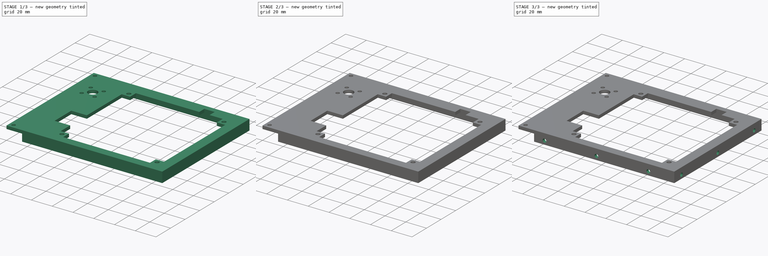
[diagram: build sequence overview — one tinted view per stage of 3, left to right]
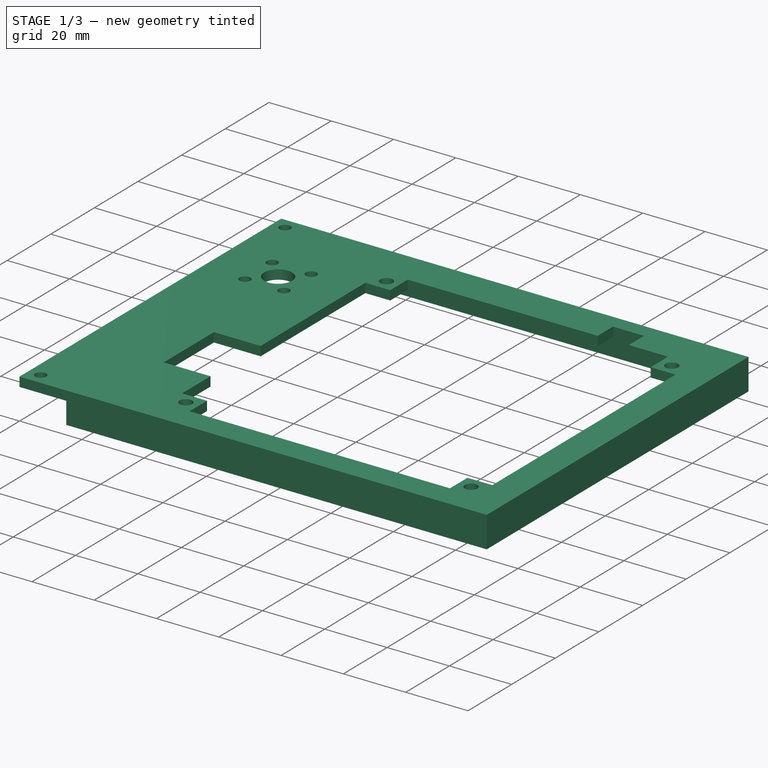
[diagram: stage 1 of 3 — iso view after this stage's code; geometry added in this stage tinted green]
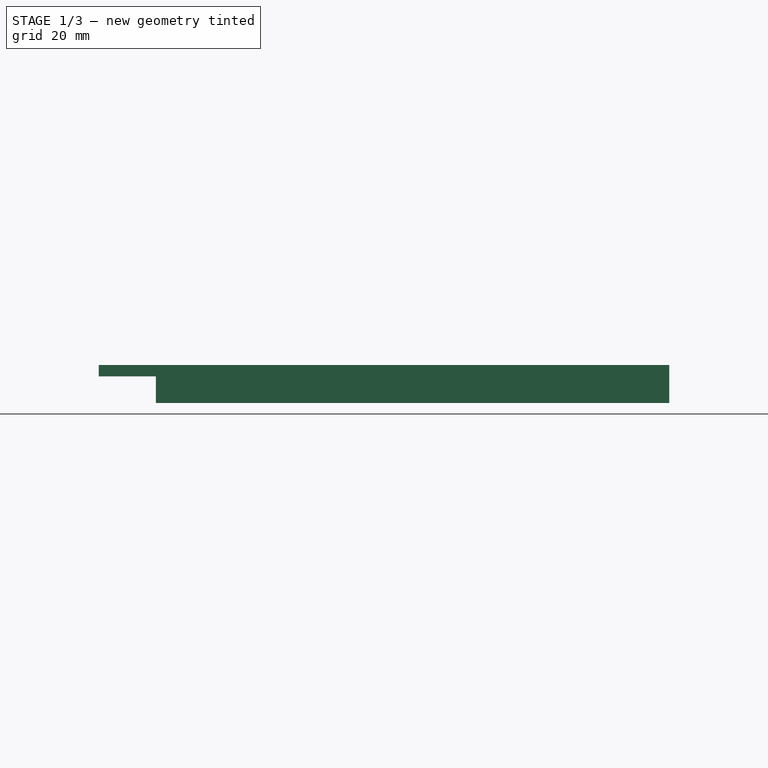
[diagram: stage 1 of 3 — front view after this stage's code; geometry added in this stage tinted green]
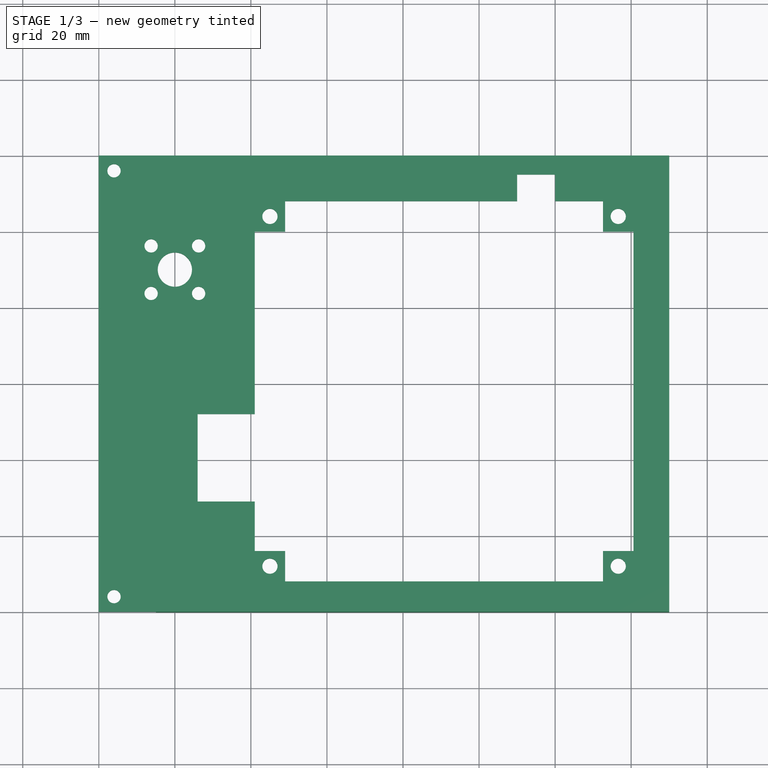
[diagram: stage 1 of 3 — top view after this stage's code; geometry added in this stage tinted green]
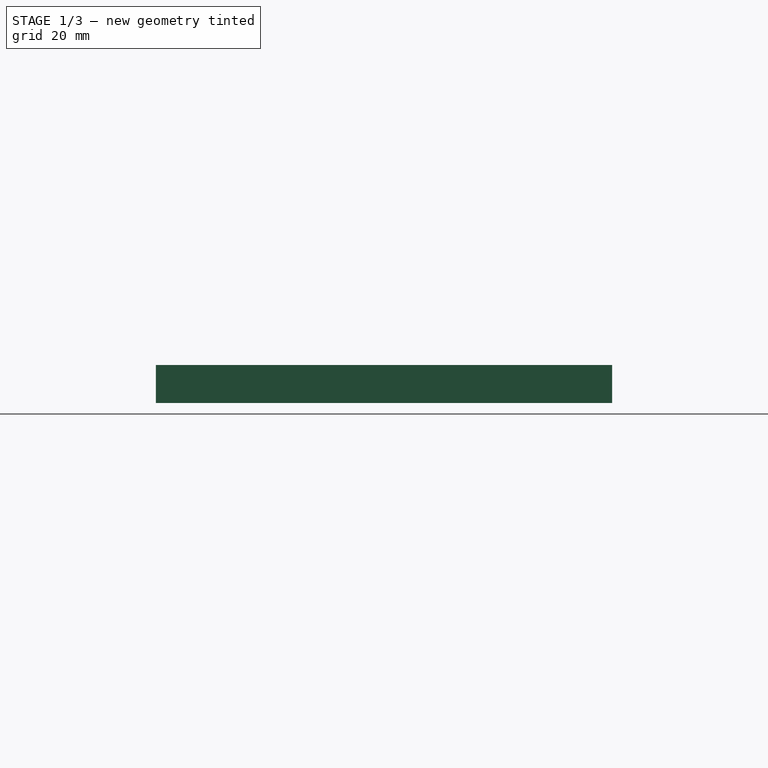
[diagram: stage 1 of 3 — right view after this stage's code; geometry added in this stage tinted green]
FCSTD DOCUMENT  (FreeCAD 0.21R29393 (Git))
Label: BackRightPanel2
License: All rights reserved
LicenseURL: http://en.wikipedia.org/wiki/All_rights_reserved
objects: Sketcher::SketchObject×5, PartDesign::Plane×3, PartDesign::Pocket×3, PartDesign::Pad×2, PartDesign::Body×1
note: 19 computed .brp shape members not serialized (recipe doc carries the construction recipe); baked Part::Feature solids carry a one-line shape summary decoded from their .brp

FEATURE [Sketcher::SketchObject] Sketch  label="SketchBase"
  FullyConstrained = false
  MapMode = 5
  Support = -> [XY_Plane]
  sketch-geometry (35):
    g0: LineSegment StartX=0 StartY=0 StartZ=0 EndX=150 EndY=0 EndZ=0
    g1: LineSegment StartX=150 StartY=0 StartZ=0 EndX=150 EndY=120 EndZ=0
    g2: LineSegment StartX=150 StartY=120 StartZ=0 EndX=0 EndY=120 EndZ=0
    g3: LineSegment StartX=0 StartY=120 StartZ=0 EndX=0 EndY=0 EndZ=0
    g4: Circle CenterX=20 CenterY=90 CenterZ=0 NormalX=0 NormalY=0 NormalZ=1 AngleXU=0 Radius=4.5
    g5: Circle CenterX=13.75 CenterY=96.25 CenterZ=0 NormalX=0 NormalY=0 NormalZ=1 AngleXU=0 Radius=1.75
    g6: Circle CenterX=26.25 CenterY=96.25 CenterZ=0 NormalX=0 NormalY=0 NormalZ=1 AngleXU=0 Radius=1.75
    g7: Circle CenterX=13.75 CenterY=83.75 CenterZ=0 NormalX=0 NormalY=0 NormalZ=1 AngleXU=0 Radius=1.75
    g8: Circle CenterX=26.25 CenterY=83.75 CenterZ=0 NormalX=0 NormalY=0 NormalZ=1 AngleXU=0 Radius=1.75
    g9: Circle CenterX=4 CenterY=116 CenterZ=0 NormalX=0 NormalY=0 NormalZ=1 AngleXU=0 Radius=1.75
    g10: Circle CenterX=4 CenterY=4 CenterZ=0 NormalX=0 NormalY=0 NormalZ=1 AngleXU=0 Radius=1.75
    g11: LineSegment StartX=49 StartY=108 StartZ=0 EndX=110 EndY=108 EndZ=0
    g12: LineSegment StartX=41 StartY=16 StartZ=0 EndX=41 EndY=29 EndZ=0
    g13: Circle CenterX=45 CenterY=104 CenterZ=0 NormalX=0 NormalY=0 NormalZ=1 AngleXU=0 Radius=2
    g14: Circle CenterX=136.6 CenterY=104 CenterZ=0 NormalX=0 NormalY=0 NormalZ=1 AngleXU=0 Radius=2
    g15: Circle CenterX=45 CenterY=12 CenterZ=0 NormalX=0 NormalY=0 NormalZ=1 AngleXU=0 Radius=2
    g16: Circle CenterX=136.6 CenterY=12 CenterZ=0 NormalX=0 NormalY=0 NormalZ=1 AngleXU=0 Radius=2
    g17: LineSegment StartX=41 StartY=16 StartZ=0 EndX=49 EndY=16 EndZ=0
    g18: LineSegment StartX=49 StartY=16 StartZ=0 EndX=49 EndY=8 EndZ=0
    g19: LineSegment StartX=140.6 StartY=100 StartZ=0 EndX=140.6 EndY=16 EndZ=0
    g20: LineSegment StartX=49 StartY=8 StartZ=0 EndX=132.6 EndY=8 EndZ=0
    g21: LineSegment StartX=110 StartY=115 StartZ=0 EndX=120 EndY=115 EndZ=0
    g22: LineSegment StartX=120 StartY=115 StartZ=0 EndX=120 EndY=108 EndZ=0
    g23: LineSegment StartX=110 StartY=108 StartZ=0 EndX=110 EndY=115 EndZ=0
    g24: LineSegment StartX=26 StartY=29 StartZ=0 EndX=26 EndY=52 EndZ=0
    g25: LineSegment StartX=132.6 StartY=8 StartZ=0 EndX=132.6 EndY=16 EndZ=0
    g26: LineSegment StartX=132.6 StartY=16 StartZ=0 EndX=140.6 EndY=16 EndZ=0
    g27: LineSegment StartX=41 StartY=100 StartZ=0 EndX=49 EndY=100 EndZ=0
    g28: LineSegment StartX=132.6 StartY=108 StartZ=0 EndX=132.6 EndY=100 EndZ=0
    g29: LineSegment StartX=132.6 StartY=100 StartZ=0 EndX=140.6 EndY=100 EndZ=0
    g30: LineSegment StartX=49 StartY=108 StartZ=0 EndX=49 EndY=100 EndZ=0
    g31: LineSegment StartX=120 StartY=108 StartZ=0 EndX=132.6 EndY=108 EndZ=0
    g32: LineSegment StartX=26 StartY=29 StartZ=0 EndX=41 EndY=29 EndZ=0
    g33: LineSegment StartX=26 StartY=52 StartZ=0 EndX=41 EndY=52 EndZ=0
    g34: LineSegment StartX=41 StartY=52 StartZ=0 EndX=41 EndY=100 EndZ=0
  constraints (100):
    c: Coincident(g0,g1)
    c: Coincident(g1,g2)
    c: Coincident(g2,g3)
    c: Coincident(g3,g0)
    c: Horizontal(g0)
    c: Horizontal(g2)
    c: Vertical(g1)
    c: Vertical(g3)
    c: Coincident(g0,g-1)
    c: DistanceY(g0,g2) = 120
    c: DistanceX(g2,g1) = 150
    c: DistanceX(g2,g4) = 20
    c: DistanceY(g4,g2) = 30
    c: Diameter(g4) = 9
    c: Horizontal(g5,g6)
    c: Vertical(g6,g8)
    c: Horizontal(g7,g8)
    c: DistanceX(g5,g6) = 12.5
    c: DistanceY(g8,g6) = 12.5
    c: Vertical(g5,g7)
    c: Equal(g5,g6)
    c: Equal(g5,g8)
    c: Equal(g5,g7)
    c: Diameter(g5) = 3.5
    c: Symmetric(g5,g8,g4)
    c: Equal(g9,g10)
    c: Diameter(g9) = 3.5
    c: Vertical(g10,g9)
    c: DistanceX(g0,g10) = 4
    c: DistanceY(g0,g10) = 4
    c: DistanceY(g9,g2) = 4
    c: Horizontal(g11)
    c: Vertical(g12)
    c: Diameter(g16) = 4
    c: Equal(g16,g15)
    c: Equal(g15,g13)
    c: Equal(g13,g14)
    c: Horizontal(g15,g16)
    c: Horizontal(g13,g14)
    c: Vertical(g16,g14)
    c: Vertical(g15,g13)
    c: DistanceY(g16,g14) = 92
    c: Horizontal(g17)
    c: Coincident(g18,g17)
    c: Vertical(g18)
    c: Coincident(g12,g17)
    c: DistanceX(g15,g18) = 4
    c: DistanceY(g15,g17) = 4
    c: Vertical(g19)
    c: Coincident(g20,g18)
    c: Horizontal(g20)
    c: DistanceY(g0,g15) = 12
    c: DistanceX(g0,g15) = 45
    c: Coincident(g21,g22)
    c: Coincident(g23,g21)
    c: Horizontal(g21)
    c: Vertical(g22)
    c: Vertical(g23)
    c: DistanceX(g21,g21) = 10
    c: DistanceY(g23,g21) = 7
    c: DistanceX(g21,g1) = 30
    c: DistanceY(g21,g1) = 5
    c: Vertical(g24)
    c: Vertical(g25)
    c: Coincident(g20,g25)
    c: Coincident(g26,g25)
    c: Coincident(g26,g19)
    c: Horizontal(g26)
    c: Horizontal(g27)
    c: Coincident(g34,g27)
    c: Vertical(g28)
    c: Coincident(g29,g28)
    c: Horizontal(g29)
    c: Coincident(g31,g28)
    c: Coincident(g19,g29)
    c: Coincident(g30,g11)
    c: Coincident(g30,g27)
    c: Vertical(g30)
    c: DistanceX(g15,g16) = 91.6
    c: DistanceX(g31,g14) = 4
    c: DistanceY(g19,g14) = 4
    c: DistanceX(g13,g27) = 4
    c: DistanceY(g34,g13) = 4
    c: DistanceX(g20,g16) = 4
    c: DistanceY(g16,g19) = 4
    c: DistanceY(g13,g11) = 4
    c: DistanceX(g34,g13) = 4
    c: DistanceY(g18,g15) = 4
    c: DistanceX(g16,g19) = 4
    c: PointOnObject(g31,g22)
    c: Coincident(g32,g24)
    c: Horizontal(g32)
    c: Coincident(g33,g24)
    c: Horizontal(g33)
    c: Coincident(g12,g32)
    c: Coincident(g34,g33)
    c: DistanceY(g24,g24) = 23
    c: DistanceY(g15,g12) = 17
    c: DistanceX(g24,g33) = 15
    c: Vertical(g34)
FEATURE [PartDesign::Pad] Pad
  Direction = (0,0,1)
  Length = 3
  Length2 = 10
  Profile = -> Sketch
  ReferenceAxis = -> Sketch [N_Axis]
  Reversed = true
  Type = 0
FEATURE [PartDesign::Plane] DatumPlane
  AttachmentOffset = pos=(0,0,-3) rot=(0,0,1;0rad)
  Length = 60
  MapMode = 5
  Placement = pos=(0,0,-3) rot=(0,0,1;0rad)
  ResizeMode = 0
  Support = -> [XY_Plane]
  Width = 60
FEATURE [Sketcher::SketchObject] Sketch001
  FullyConstrained = true
  MapMode = 5
  Placement = pos=(0,0,-3) rot=(0,0,1;0rad)
  Support = -> [DatumPlane]
  sketch-geometry (8):
    g0: LineSegment StartX=15 StartY=117 StartZ=0 EndX=15 EndY=120 EndZ=0
    g1: LineSegment StartX=15 StartY=120 StartZ=0 EndX=150 EndY=120 EndZ=0
    g2: LineSegment StartX=150 StartY=120 StartZ=0 EndX=150 EndY=0 EndZ=0
    g3: LineSegment StartX=150 StartY=0 StartZ=0 EndX=15 EndY=0 EndZ=0
    g4: LineSegment StartX=15 StartY=0 StartZ=0 EndX=15 EndY=3 EndZ=0
    g5: LineSegment StartX=15 StartY=3 StartZ=0 EndX=147 EndY=3 EndZ=0
    g6: LineSegment StartX=147 StartY=3 StartZ=0 EndX=147 EndY=117 EndZ=0
    g7: LineSegment StartX=147 StartY=117 StartZ=0 EndX=15 EndY=117 EndZ=0
  constraints (24):
    c: Vertical(g0)
    c: Coincident(g0,g1)
    c: Horizontal(g1)
    c: Coincident(g1,g2)
    c: Vertical(g2)
    c: Coincident(g2,g3)
    c: Horizontal(g3)
    c: Coincident(g3,g4)
    c: Coincident(g4,g5)
    c: Horizontal(g5)
    c: Coincident(g5,g6)
    c: Vertical(g6)
    c: Coincident(g6,g7)
    c: Coincident(g7,g0)
    c: Horizontal(g7)
    c: Vertical(g4)
    c: DistanceY(g3,g4) = 3
    c: DistanceY(g0,g0) = 3
    c: DistanceX(g6,g1) = 3
    c: DistanceX(g0,g1) = 135
    c: DistanceY(g2,g1) = 120
    c: DistanceX(g-1,g3) = 15
    c: DistanceY(g-1,g3) = 0
    c: Equal(g1,g3)
FEATURE [PartDesign::Pad] Pad001
  BaseFeature = -> Pad
  Direction = (0,0,1)
  Length = 7
  Length2 = 10
  Profile = -> Sketch001
  ReferenceAxis = -> Sketch001 [N_Axis]
  Reversed = true
  Type = 0
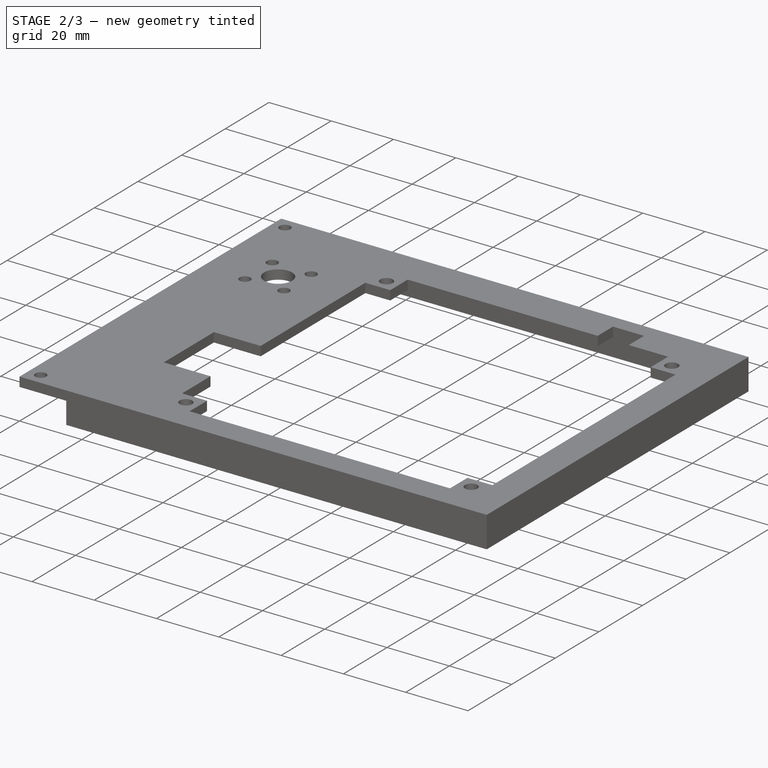
[diagram: stage 2 of 3 — iso view after this stage's code; geometry added in this stage tinted green]
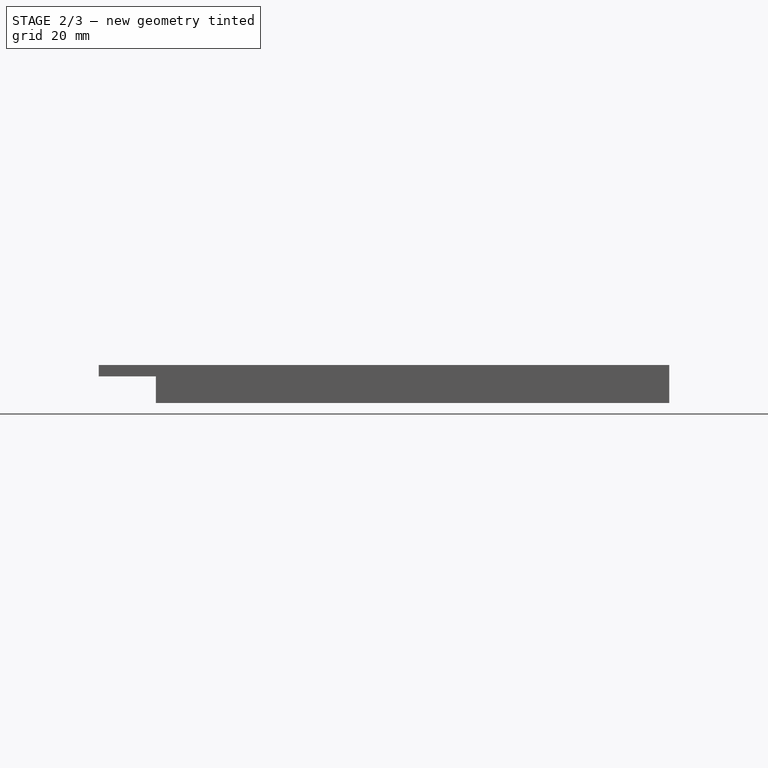
[diagram: stage 2 of 3 — front view after this stage's code; geometry added in this stage tinted green]
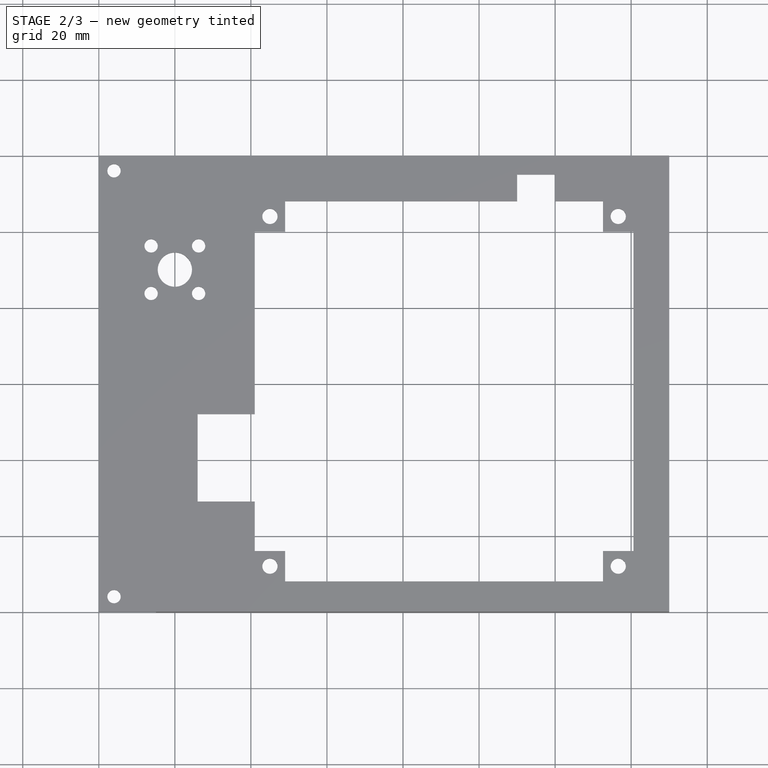
[diagram: stage 2 of 3 — top view after this stage's code; geometry added in this stage tinted green]
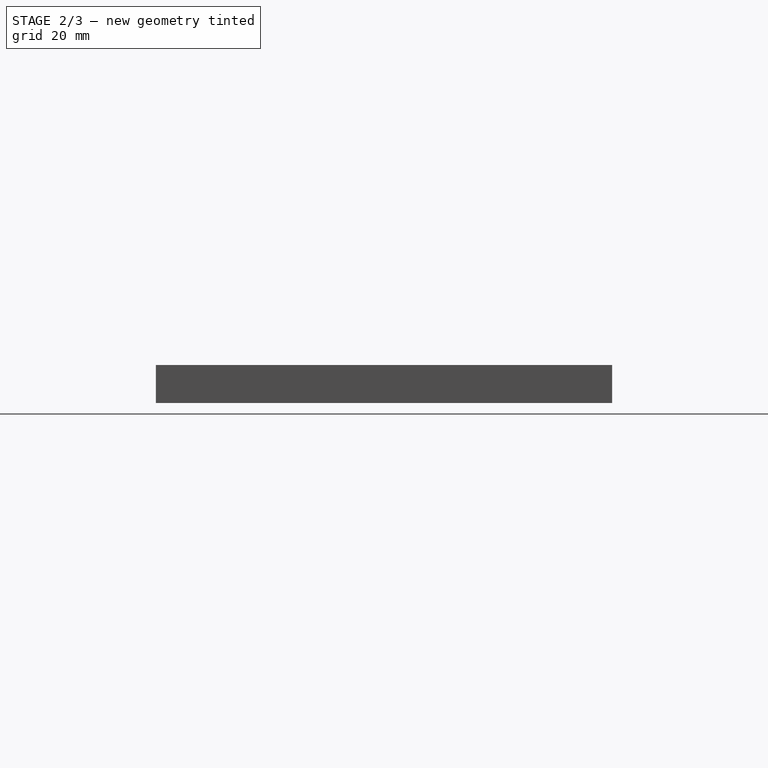
[diagram: stage 2 of 3 — right view after this stage's code; geometry added in this stage tinted green]
FEATURE [Sketcher::SketchObject] Sketch002
  FullyConstrained = true
  MapMode = 5
  Placement = pos=(0,0,0) rot=(1,0,0;1.5708rad)
  Support = -> [XZ_Plane]
  sketch-geometry (3):
    g0: Circle CenterX=25 CenterY=-6.5 CenterZ=0 NormalX=0 NormalY=0 NormalZ=1 AngleXU=0 Radius=1.75
    g1: Circle CenterX=75 CenterY=-6.5 CenterZ=0 NormalX=0 NormalY=0 NormalZ=1 AngleXU=0 Radius=1.75
    g2: Circle CenterX=125 CenterY=-6.5 CenterZ=0 NormalX=0 NormalY=0 NormalZ=1 AngleXU=0 Radius=1.75
  constraints (9):
    c: Equal(g0,g1)
    c: Equal(g0,g2)
    c: Diameter(g0) = 3.5
    c: Horizontal(g0,g1)
    c: Horizontal(g1,g2)
    c: DistanceY(g0,g-1) = 6.5
    c: DistanceX(g-1,g0) = 25
    c: DistanceX(g-1,g1) = 75
    c: DistanceX(g-1,g2) = 125
FEATURE [PartDesign::Plane] DatumPlane001
  AttachmentOffset = pos=(0,0,-120) rot=(0,0,1;0rad)
  Length = 60
  MapMode = 5
  Placement = pos=(0,120,2.66e-14) rot=(1,0,0;1.5708rad)
  ResizeMode = 0
  Support = -> [XZ_Plane]
  Width = 60
FEATURE [Sketcher::SketchObject] Sketch003
  FullyConstrained = true
  MapMode = 5
  Placement = pos=(0,120,2.66e-14) rot=(1,0,0;1.5708rad)
  Support = -> [DatumPlane001]
  sketch-geometry (3):
    g0: Circle CenterX=25 CenterY=-6.5 CenterZ=0 NormalX=0 NormalY=0 NormalZ=1 AngleXU=0 Radius=1.75
    g1: Circle CenterX=75 CenterY=-6.5 CenterZ=0 NormalX=0 NormalY=0 NormalZ=1 AngleXU=0 Radius=1.75
    g2: Circle CenterX=125 CenterY=-6.5 CenterZ=0 NormalX=0 NormalY=0 NormalZ=1 AngleXU=0 Radius=1.75
  constraints (9):
    c: Equal(g0,g1)
    c: Equal(g0,g2)
    c: Diameter(g0) = 3.5
    c: Horizontal(g0,g1)
    c: Horizontal(g1,g2)
    c: DistanceY(g0,g-1) = 6.5
    c: DistanceX(g-1,g0) = 25
    c: DistanceX(g-1,g1) = 75
    c: DistanceX(g-1,g2) = 125
FEATURE [PartDesign::Pocket] Pocket
  BaseFeature = -> Pad001
  Direction = (0,1,2e-16)
  Length = 5
  Length2 = 5
  Profile = -> Sketch003
  ReferenceAxis = -> Sketch003 [N_Axis]
  Reversed = true
  Type = 0
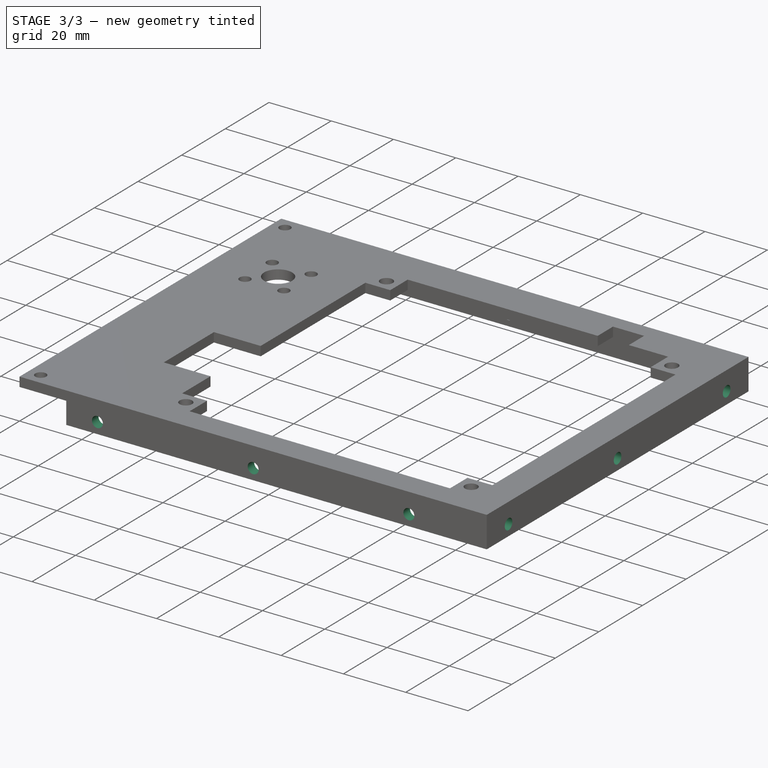
[diagram: stage 3 of 3 — iso view after this stage's code; geometry added in this stage tinted green]
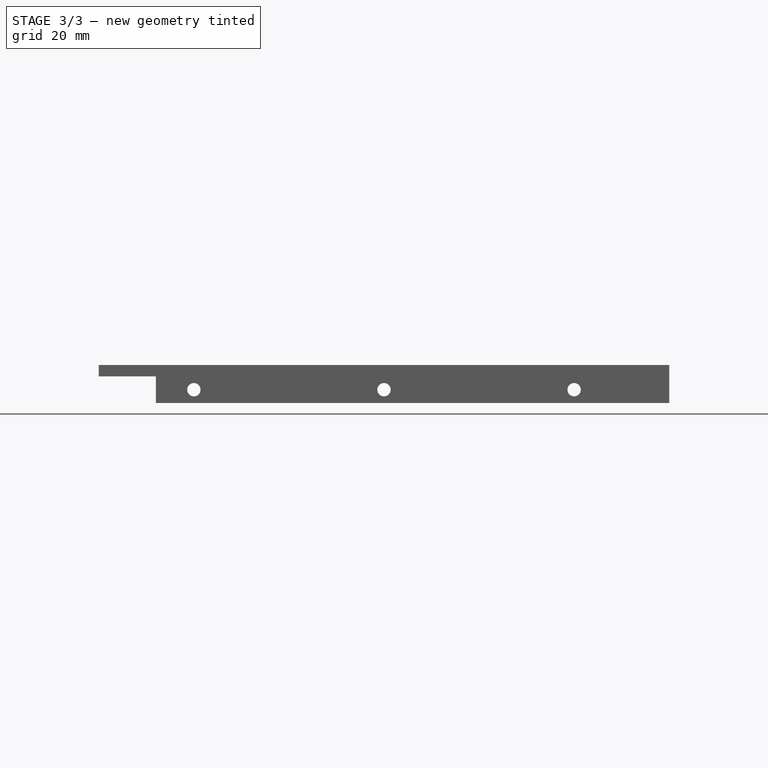
[diagram: stage 3 of 3 — front view after this stage's code; geometry added in this stage tinted green]
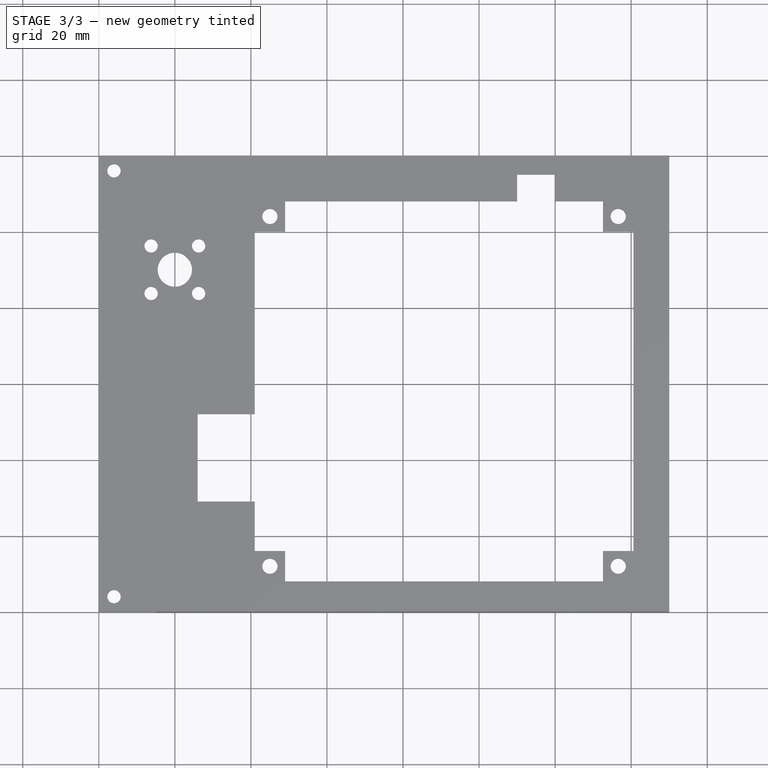
[diagram: stage 3 of 3 — top view after this stage's code; geometry added in this stage tinted green]
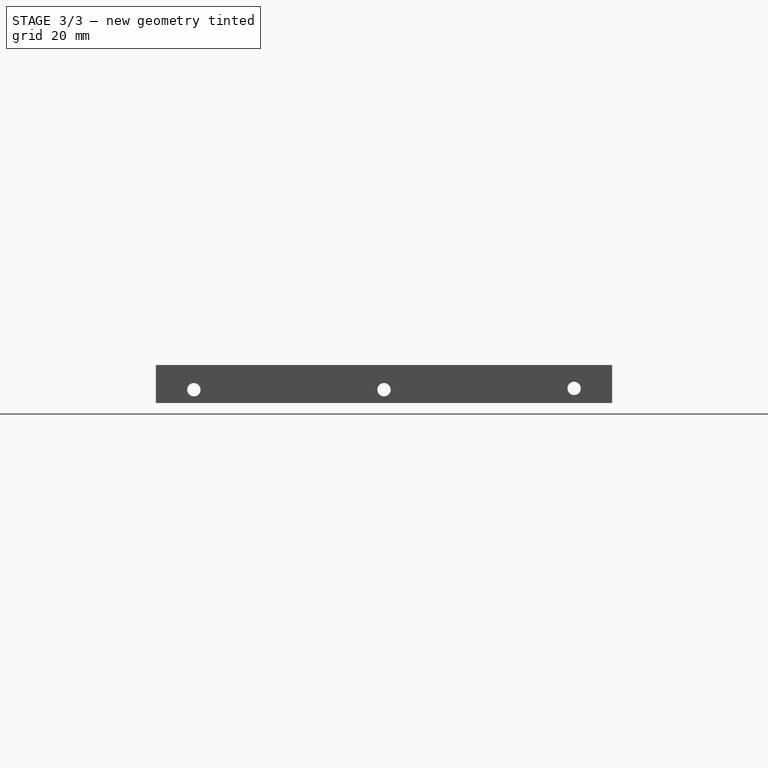
[diagram: stage 3 of 3 — right view after this stage's code; geometry added in this stage tinted green]
FEATURE [PartDesign::Pocket] Pocket001
  BaseFeature = -> Pocket
  Direction = (0,1,2e-16)
  Length = 5
  Length2 = 5
  Profile = -> Sketch002
  ReferenceAxis = -> Sketch002 [N_Axis]
  Type = 0
FEATURE [PartDesign::Plane] DatumPlane002
  AttachmentOffset = pos=(0,0,150) rot=(0,0,1;0rad)
  Length = 60
  MapMode = 5
  Placement = pos=(150,-3.33e-14,3.33e-14) rot=(0.57735,0.57735,0.57735;2.0944rad)
  ResizeMode = 0
  Support = -> [YZ_Plane]
  Width = 60
FEATURE [Sketcher::SketchObject] Sketch004
  FullyConstrained = false
  MapMode = 5
  Placement = pos=(150,-3.33e-14,3.33e-14) rot=(0.57735,0.57735,0.57735;2.0944rad)
  Support = -> [DatumPlane002]
  sketch-geometry (3):
    g0: Circle CenterX=10 CenterY=-6.5 CenterZ=0 NormalX=0 NormalY=0 NormalZ=1 AngleXU=0 Radius=1.75
    g1: Circle CenterX=110 CenterY=-6.1565 CenterZ=0 NormalX=0 NormalY=0 NormalZ=1 AngleXU=0 Radius=1.75
    g2: Circle CenterX=60 CenterY=-6.5 CenterZ=0 NormalX=0 NormalY=0 NormalZ=1 AngleXU=0 Radius=1.75
  constraints (8):
    c: Equal(g0,g1)
    c: Equal(g0,g2)
    c: Diameter(g0) = 3.5
    c: Horizontal(g0,g2)
    c: DistanceX(g-1,g0) = 10
    c: DistanceX(g-1,g2) = 60
    c: DistanceX(g-1,g1) = 110
    c: DistanceY(g0,g-1) = 6.5
FEATURE [PartDesign::Pocket] Pocket002
  BaseFeature = -> Pocket001
  Direction = (-1,1e-16,-1e-16)
  Length = 10
  Length2 = 5
  Midplane = true
  Profile = -> Sketch004
  ReferenceAxis = -> Sketch004 [N_Axis]
  Type = 0
FEATURE [PartDesign::Body] Body
  Group = -> [Sketch,Pad,Sketch001,DatumPlane,Pad001,Sketch002,DatumPlane001,Sketch003,Pocket,Pocket001,DatumPlane002,Sketch004,Pocket002]
  Origin = -> Origin
  Tip = -> Pocket002
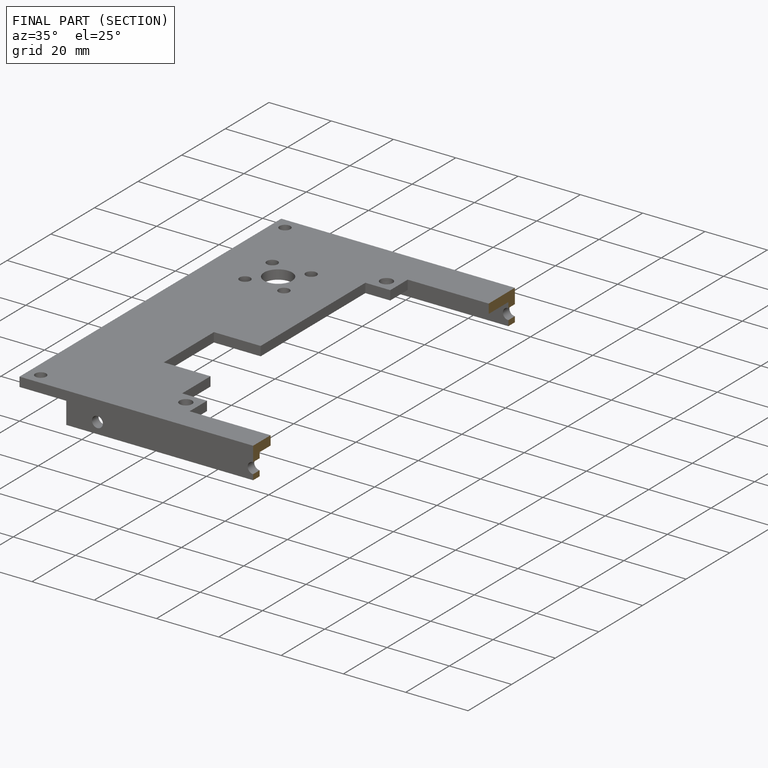
[diagram: finished part — half-section view (interior)]
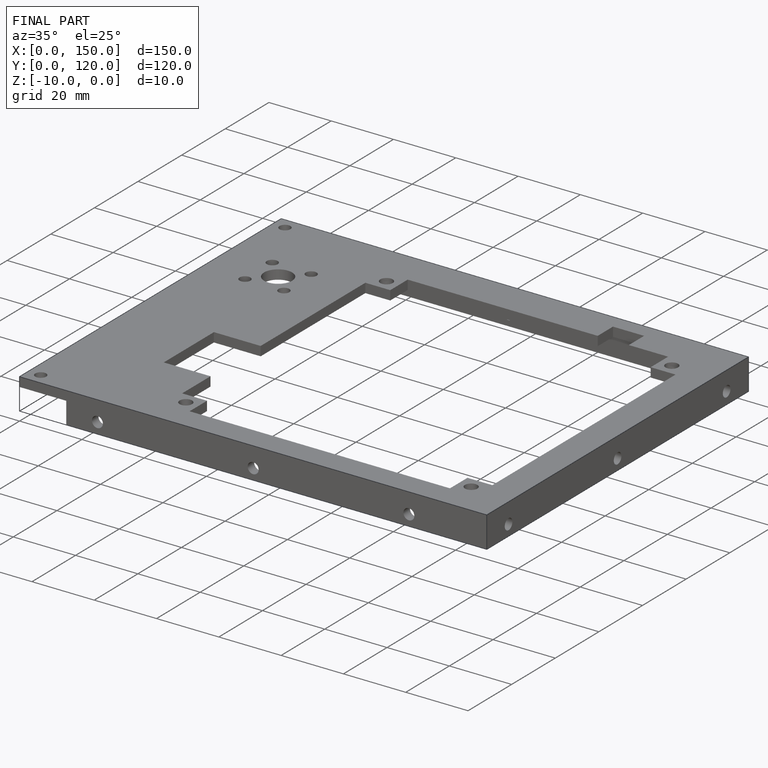
[diagram: finished part — iso view with bounding-box wireframe]
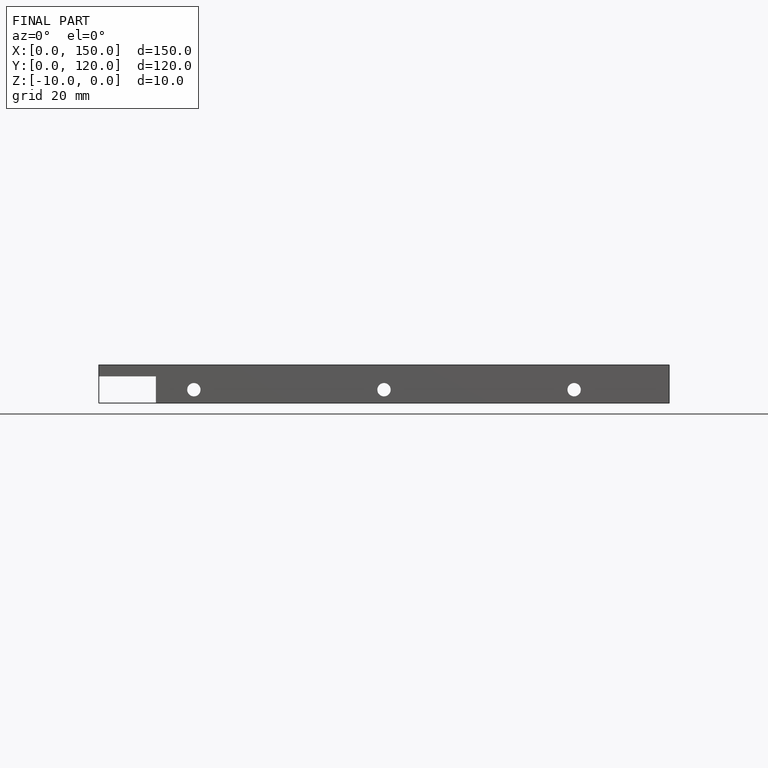
[diagram: finished part — front view with bounding-box wireframe]
